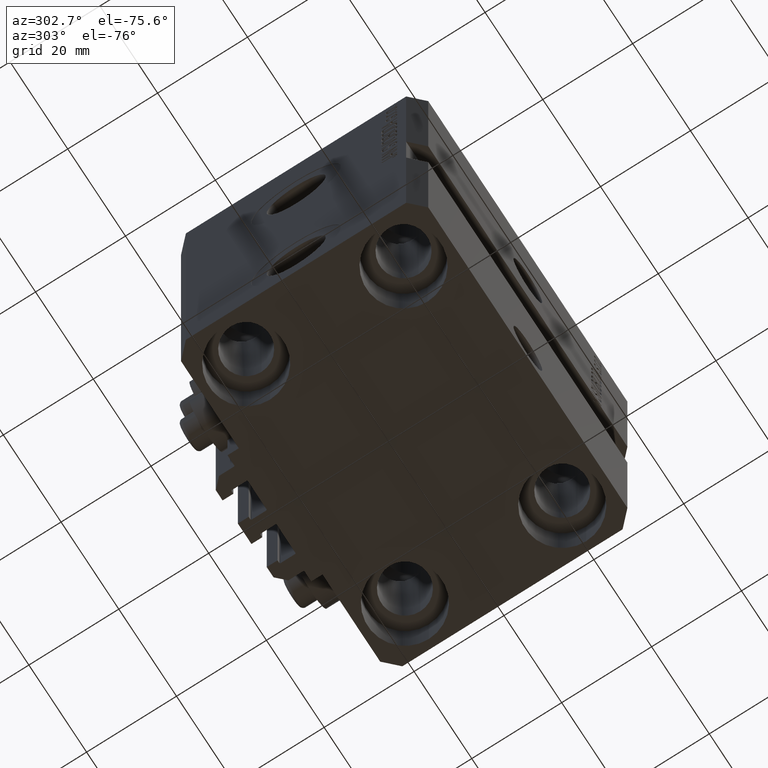
[diagram: clean part render]
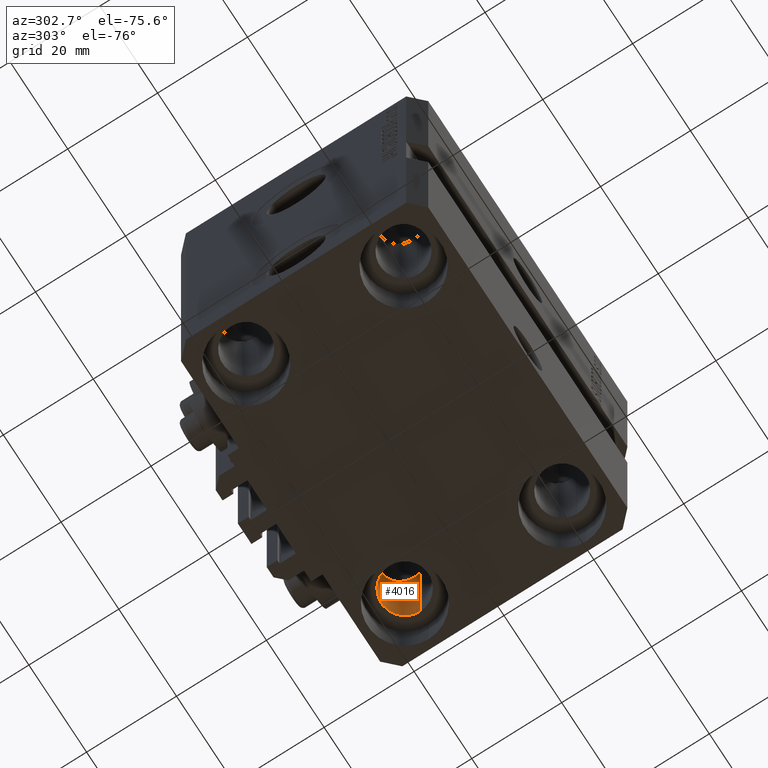
[diagram: same view with one face highlighted and labeled with its STEP entity id]
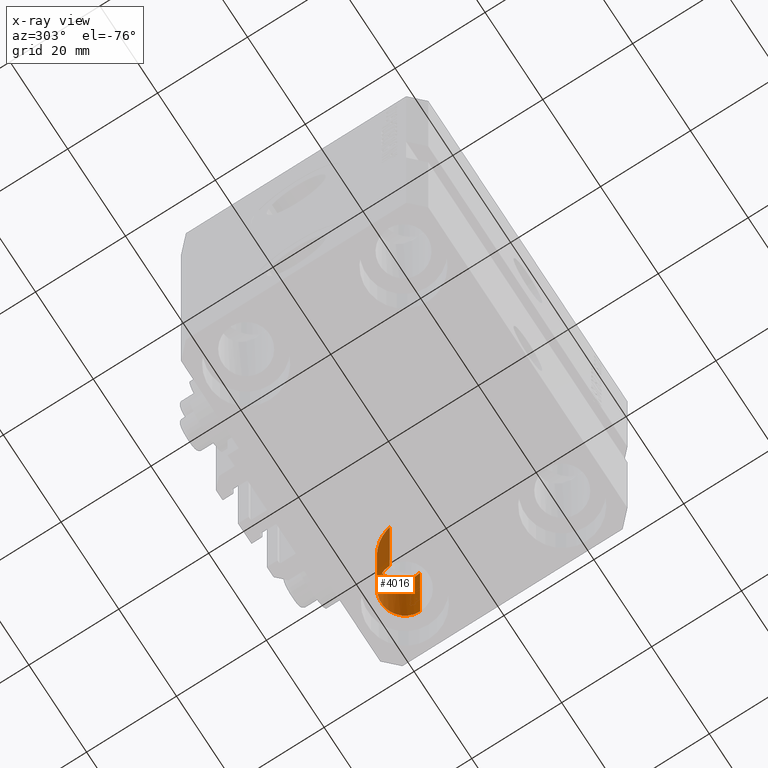
[diagram: x-ray of the same camera — body ghosted, the highlighted face saturated]
A machine part, auxiliary view. The second image highlights one B-rep face of the part: STEP entity #4016.
The next image is the same camera in x-ray: the body ghosted, the highlighted face saturated — about 20% of this face is hidden behind the body in this view.
In plain terms, the highlighted cylindrical surface (edge-blend (fillet) strip) has radius 5.25 mm, axis along (0, 0, 1).
Its self-contained STEP definition (entity closure, byte-faithful):
#396 = CARTESIAN_POINT ( 'NONE',  ( 22.25000000000000000, 17.50000000000001066, -69.00000000000000000 ) ) ;
#863 = VECTOR ( 'NONE', #4297, 1000.000000000000000 ) ;
#1606 = FACE_OUTER_BOUND ( 'NONE', #30081, .T. ) ;
#3875 = EDGE_CURVE ( 'NONE', #31980, #18744, #16276, .T. ) ;
#4016 = ADVANCED_FACE ( 'NONE', ( #1606 ), #30594, .F. ) ;
#4297 = DIRECTION ( 'NONE',  ( -0.000000000000000000, -0.000000000000000000, 1.000000000000000000 ) ) ;
#7069 = EDGE_CURVE ( 'NONE', #31980, #32644, #7476, .T. ) ;
#7476 = CIRCLE ( 'NONE', #34278, 5.249999999999997335 ) ;
#9160 = CARTESIAN_POINT ( 'NONE',  ( 32.74999999999999289, 28.00000000000000000, -50.49999999999999289 ) ) ;
#11709 = LINE ( 'NONE', #26809, #863 ) ;
#12603 = CARTESIAN_POINT ( 'NONE',  ( 27.49999999999999645, 17.50000000000001066, -80.00000000000000000 ) ) ;
#12658 = CARTESIAN_POINT ( 'NONE',  ( 27.49999999999999645, 17.50000000000001066, -69.00000000000000000 ) ) ;
#13480 = AXIS2_PLACEMENT_3D ( 'NONE', #12603, #23633, #27457 ) ;
#13560 = ORIENTED_EDGE ( 'NONE', *, *, #41267, .T. ) ;
#14567 = VERTEX_POINT ( 'NONE', #20517 ) ;
#15578 = DIRECTION ( 'NONE',  ( -1.000000000000000000, 0.000000000000000000, 0.000000000000000000 ) ) ;
#15840 = CARTESIAN_POINT ( 'NONE',  ( 32.74999999999999289, 17.50000000000001066, -69.00000000000000000 ) ) ;
#16208 = ORIENTED_EDGE ( 'NONE', *, *, #7069, .T. ) ;
#16276 = LINE ( 'NONE', #16997, #34168 ) ;
#16837 = CARTESIAN_POINT ( 'NONE',  ( 22.25000000000000711, 28.00000000000000000, -50.49999999999999289 ) ) ;
#16997 = CARTESIAN_POINT ( 'NONE',  ( 22.25000000000000000, 17.50000000000001066, -80.00000000000000000 ) ) ;
#18744 = VERTEX_POINT ( 'NONE', #40060 ) ;
#19476 = EDGE_CURVE ( 'NONE', #14567, #18744, #36892, .T. ) ;
#19644 = DIRECTION ( 'NONE',  ( 0.000000000000000000, 0.000000000000000000, -1.000000000000000000 ) ) ;
#20517 = CARTESIAN_POINT ( 'NONE',  ( 32.74999999999999289, 17.50000000000001421, -40.00000000000000000 ) ) ;
#21828 = ORIENTED_EDGE ( 'NONE', *, *, #19476, .T. ) ;
#23633 = DIRECTION ( 'NONE',  ( -0.000000000000000000, -0.000000000000000000, 1.000000000000000000 ) ) ;
#25826 = ORIENTED_EDGE ( 'NONE', *, *, #3875, .F. ) ;
#26809 = CARTESIAN_POINT ( 'NONE',  ( 32.74999999999999289, 17.50000000000001066, -80.00000000000000000 ) ) ;
#27457 = DIRECTION ( 'NONE',  ( 1.000000000000000000, 0.000000000000000000, 0.000000000000000000 ) ) ;
#30081 = EDGE_LOOP ( 'NONE', ( #25826, #16208, #13560, #21828 ) ) ;
#30594 = CYLINDRICAL_SURFACE ( 'NONE', #13480, 5.249999999999997335 ) ;
#30649 = DIRECTION ( 'NONE',  ( -0.000000000000000000, -0.000000000000000000, 1.000000000000000000 ) ) ;
#31980 = VERTEX_POINT ( 'NONE', #396 ) ;
#32644 = VERTEX_POINT ( 'NONE', #15840 ) ;
#34168 = VECTOR ( 'NONE', #30649, 1000.000000000000000 ) ;
#34278 = AXIS2_PLACEMENT_3D ( 'NONE', #12658, #19644, #15578 ) ;
#36892 =( BOUNDED_CURVE ( )  B_SPLINE_CURVE ( 3, ( #41985, #9160, #16837, #42692 ),
 .UNSPECIFIED., .F., .F. ) 
 B_SPLINE_CURVE_WITH_KNOTS ( ( 4, 4 ),
 ( 1.570796326794896558, 4.712388980384689674 ),
 .UNSPECIFIED. ) 
 CURVE ( )  GEOMETRIC_REPRESENTATION_ITEM ( )  RATIONAL_B_SPLINE_CURVE ( ( 1.000000000000000000, 0.3333333333333333703, 0.3333333333333333703, 1.000000000000000000 ) ) 
 REPRESENTATION_ITEM ( '' )  );
#40060 = CARTESIAN_POINT ( 'NONE',  ( 22.25000000000000711, 17.50000000000001421, -40.00000000000000000 ) ) ;
#41267 = EDGE_CURVE ( 'NONE', #32644, #14567, #11709, .T. ) ;
#41985 = CARTESIAN_POINT ( 'NONE',  ( 32.74999999999999289, 17.50000000000001421, -40.00000000000000000 ) ) ;
#42692 = CARTESIAN_POINT ( 'NONE',  ( 22.25000000000000711, 17.50000000000001421, -40.00000000000000000 ) ) ;